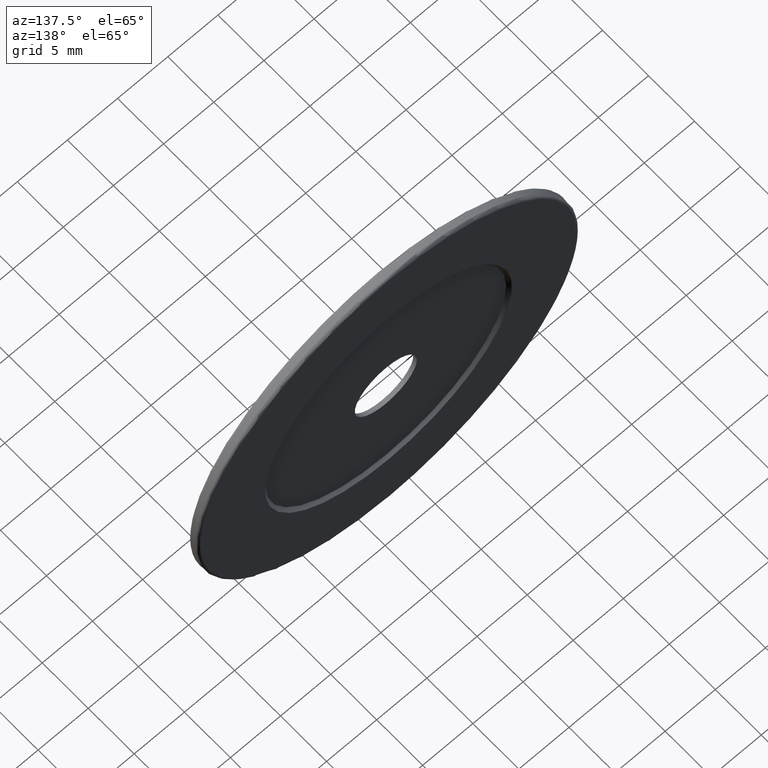
[diagram: clean part render]
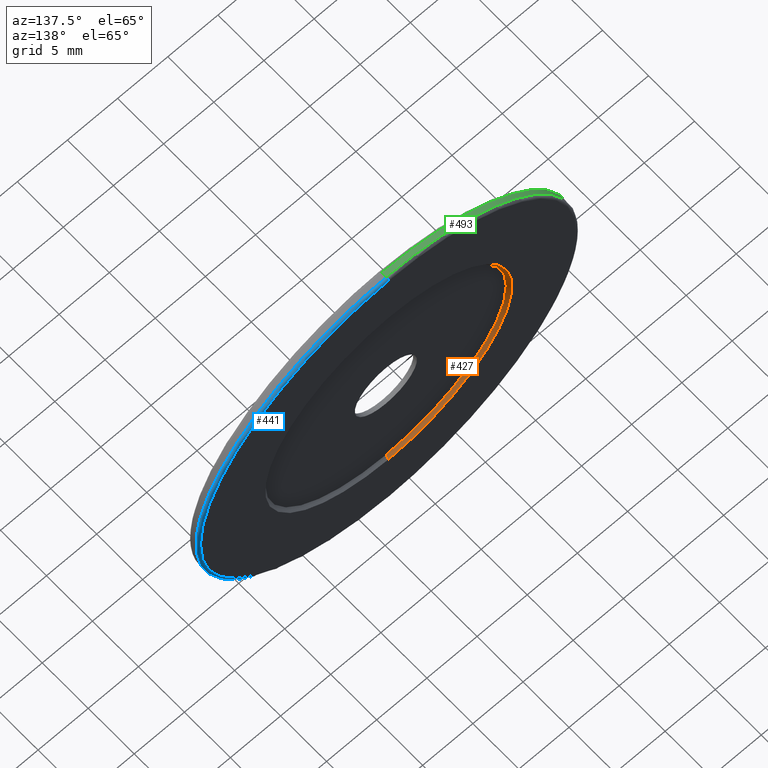
[diagram: same view with three faces highlighted in distinct colors, each labeled with its STEP entity id]
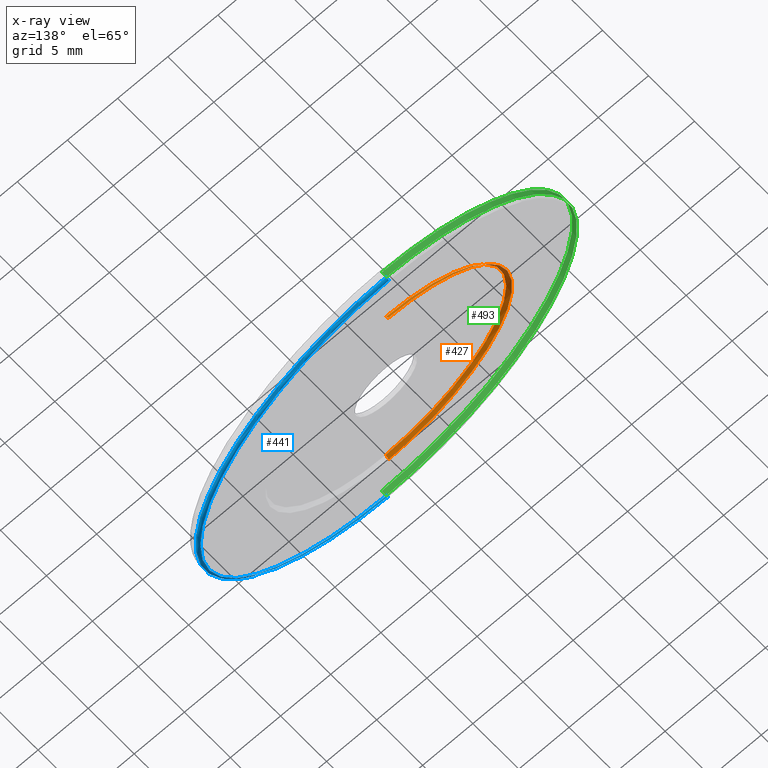
[diagram: x-ray of the same camera — body ghosted, the three highlighted faces saturated]
A machine part, auxiliary view with three faces highlighted in distinct colors.
The next image is the same camera in x-ray (body ghosted, the three faces saturated) — at least one of them is partly hidden behind the body in this view.
Their STEP definitions:

[orange] entity #427 — the highlighted conical surface has half-angle 45 deg.
#10 = DIRECTION ( 'NONE',  ( 0.000000000000000000, 0.000000000000000000, 1.000000000000000000 ) ) ;
#22 = CIRCLE ( 'NONE', #47, 12.00000000000000355 ) ;
#25 = DIRECTION ( 'NONE',  ( 8.659560562354833018E-17, 0.7071067811865556774, -0.7071067811865393571 ) ) ;
#47 = AXIS2_PLACEMENT_3D ( 'NONE', #52, #284, #449 ) ;
#52 = CARTESIAN_POINT ( 'NONE',  ( -7.546808913101048510, -2.693595127302727654, 38.00000000000000000 ) ) ;
#62 = VERTEX_POINT ( 'NONE', #322 ) ;
#76 = CARTESIAN_POINT ( 'NONE',  ( -7.546808913101048510, -2.693595127302736536, 50.00000000000000000 ) ) ;
#119 = VERTEX_POINT ( 'NONE', #442 ) ;
#131 = EDGE_CURVE ( 'NONE', #155, #119, #22, .T. ) ;
#148 = CONICAL_SURFACE ( 'NONE', #283, 12.00000000000000355, 0.7853981633974367327 ) ;
#155 = VERTEX_POINT ( 'NONE', #293 ) ;
#163 = EDGE_CURVE ( 'NONE', #155, #277, #381, .T. ) ;
#198 = EDGE_LOOP ( 'NONE', ( #402, #301, #269, #220 ) ) ;
#214 = CARTESIAN_POINT ( 'NONE',  ( -7.546808913101046734, -2.393595127302727832, 25.69999999999999218 ) ) ;
#220 = ORIENTED_EDGE ( 'NONE', *, *, #478, .F. ) ;
#226 = DIRECTION ( 'NONE',  ( 0.000000000000000000, 0.7071067811865556774, 0.7071067811865393571 ) ) ;
#239 = CARTESIAN_POINT ( 'NONE',  ( -7.546808913101048510, -2.393595127302727832, 38.00000000000000000 ) ) ;
#268 = FACE_OUTER_BOUND ( 'NONE', #198, .T. ) ;
#269 = ORIENTED_EDGE ( 'NONE', *, *, #480, .F. ) ;
#277 = VERTEX_POINT ( 'NONE', #214 ) ;
#283 = AXIS2_PLACEMENT_3D ( 'NONE', #476, #465, #389 ) ;
#284 = DIRECTION ( 'NONE',  ( 0.000000000000000000, 1.000000000000000000, 0.000000000000000000 ) ) ;
#293 = CARTESIAN_POINT ( 'NONE',  ( -7.546808913101046734, -2.693595127302727654, 25.99999999999999645 ) ) ;
#301 = ORIENTED_EDGE ( 'NONE', *, *, #163, .T. ) ;
#319 = VECTOR ( 'NONE', #25, 1000.000000000000000 ) ;
#322 = CARTESIAN_POINT ( 'NONE',  ( -7.546808913101048510, -2.393595127302727832, 50.30000000000000426 ) ) ;
#333 = CARTESIAN_POINT ( 'NONE',  ( -7.546808913101046734, -2.693595127302736536, 25.99999999999999645 ) ) ;
#354 = CIRCLE ( 'NONE', #398, 12.30000000000000604 ) ;
#381 = LINE ( 'NONE', #333, #319 ) ;
#389 = DIRECTION ( 'NONE',  ( 0.000000000000000000, 0.000000000000000000, 1.000000000000000000 ) ) ;
#398 = AXIS2_PLACEMENT_3D ( 'NONE', #239, #482, #10 ) ;
#402 = ORIENTED_EDGE ( 'NONE', *, *, #131, .F. ) ;
#427 = ADVANCED_FACE ( 'NONE', ( #268 ), #148, .F. ) ;
#432 = LINE ( 'NONE', #76, #481 ) ;
#442 = CARTESIAN_POINT ( 'NONE',  ( -7.546808913101048510, -2.693595127302727654, 50.00000000000000000 ) ) ;
#449 = DIRECTION ( 'NONE',  ( 0.000000000000000000, 0.000000000000000000, 1.000000000000000000 ) ) ;
#465 = DIRECTION ( 'NONE',  ( 0.000000000000000000, 1.000000000000000000, 0.000000000000000000 ) ) ;
#476 = CARTESIAN_POINT ( 'NONE',  ( -7.546808913101048510, -2.693595127302736536, 38.00000000000000000 ) ) ;
#478 = EDGE_CURVE ( 'NONE', #119, #62, #432, .T. ) ;
#480 = EDGE_CURVE ( 'NONE', #62, #277, #354, .T. ) ;
#481 = VECTOR ( 'NONE', #226, 1000.000000000000000 ) ;
#482 = DIRECTION ( 'NONE',  ( -0.000000000000000000, -1.000000000000000000, -0.000000000000000000 ) ) ;

[blue] entity #441 — the highlighted toroidal blend (fillet) surface has major radius 18.75 mm and minor (blend) radius 0.25 mm.
#20 = EDGE_CURVE ( 'NONE', #417, #117, #195, .T. ) ;
#30 = ORIENTED_EDGE ( 'NONE', *, *, #329, .F. ) ;
#34 = ORIENTED_EDGE ( 'NONE', *, *, #227, .F. ) ;
#35 = DIRECTION ( 'NONE',  ( -0.000000000000000000, -1.000000000000000000, -0.000000000000000000 ) ) ;
#41 = DIRECTION ( 'NONE',  ( 0.000000000000000000, 1.000000000000000000, 0.000000000000000000 ) ) ;
#66 = CIRCLE ( 'NONE', #266, 18.99999999999999645 ) ;
#78 = EDGE_LOOP ( 'NONE', ( #30, #232, #34, #378 ) ) ;
#87 = CARTESIAN_POINT ( 'NONE',  ( -7.546808913101048510, -2.643595127302727832, 56.74999999999999289 ) ) ;
#103 = CARTESIAN_POINT ( 'NONE',  ( -7.546808913101048510, -2.393595127302727832, 38.00000000000000000 ) ) ;
#106 = AXIS2_PLACEMENT_3D ( 'NONE', #118, #41, #259 ) ;
#108 = EDGE_CURVE ( 'NONE', #121, #308, #362, .T. ) ;
#111 = CARTESIAN_POINT ( 'NONE',  ( -7.546808913101045846, -2.643595127302727832, 56.99999999999999289 ) ) ;
#117 = VERTEX_POINT ( 'NONE', #240 ) ;
#118 = CARTESIAN_POINT ( 'NONE',  ( -7.546808913101048510, -2.643595127302727832, 38.00000000000000000 ) ) ;
#121 = VERTEX_POINT ( 'NONE', #206 ) ;
#125 = DIRECTION ( 'NONE',  ( 1.000000000000000000, -0.000000000000000000, 1.224646799147353207E-16 ) ) ;
#139 = DIRECTION ( 'NONE',  ( 0.000000000000000000, 0.000000000000000000, 1.000000000000000000 ) ) ;
#157 = CARTESIAN_POINT ( 'NONE',  ( -7.546808913101045846, -2.393595127302727832, 19.25000000000000000 ) ) ;
#162 = CARTESIAN_POINT ( 'NONE',  ( -7.546808913101045846, -2.643595127302727832, 19.25000000000000000 ) ) ;
#172 = AXIS2_PLACEMENT_3D ( 'NONE', #103, #492, #139 ) ;
#173 = DIRECTION ( 'NONE',  ( 0.000000000000000000, 0.000000000000000000, -1.000000000000000000 ) ) ;
#195 = CIRCLE ( 'NONE', #422, 0.2500000000000002220 ) ;
#206 = CARTESIAN_POINT ( 'NONE',  ( -7.546808913101048510, -2.643595127302727832, 19.00000000000000000 ) ) ;
#227 = EDGE_CURVE ( 'NONE', #117, #308, #396, .T. ) ;
#232 = ORIENTED_EDGE ( 'NONE', *, *, #108, .T. ) ;
#240 = CARTESIAN_POINT ( 'NONE',  ( -7.546808913101048510, -2.393595127302727832, 56.74999999999999289 ) ) ;
#259 = DIRECTION ( 'NONE',  ( 0.000000000000000000, 0.000000000000000000, 1.000000000000000000 ) ) ;
#266 = AXIS2_PLACEMENT_3D ( 'NONE', #348, #35, #437 ) ;
#279 = DIRECTION ( 'NONE',  ( 0.000000000000000000, 0.000000000000000000, 1.000000000000000000 ) ) ;
#280 = DIRECTION ( 'NONE',  ( -1.000000000000000000, 0.000000000000000000, 0.000000000000000000 ) ) ;
#281 = AXIS2_PLACEMENT_3D ( 'NONE', #162, #125, #173 ) ;
#308 = VERTEX_POINT ( 'NONE', #157 ) ;
#329 = EDGE_CURVE ( 'NONE', #121, #417, #66, .T. ) ;
#348 = CARTESIAN_POINT ( 'NONE',  ( -7.546808913101048510, -2.643595127302727832, 38.00000000000000000 ) ) ;
#362 = CIRCLE ( 'NONE', #281, 0.2500000000000002220 ) ;
#378 = ORIENTED_EDGE ( 'NONE', *, *, #20, .F. ) ;
#396 = CIRCLE ( 'NONE', #172, 18.74999999999999645 ) ;
#417 = VERTEX_POINT ( 'NONE', #111 ) ;
#422 = AXIS2_PLACEMENT_3D ( 'NONE', #87, #280, #279 ) ;
#425 = TOROIDAL_SURFACE ( 'NONE', #106, 18.75000000000000000, 0.2500000000000000000 ) ;
#435 = FACE_OUTER_BOUND ( 'NONE', #78, .T. ) ;
#437 = DIRECTION ( 'NONE',  ( 0.000000000000000000, 0.000000000000000000, 1.000000000000000000 ) ) ;
#441 = ADVANCED_FACE ( 'NONE', ( #435 ), #425, .T. ) ;
#492 = DIRECTION ( 'NONE',  ( 0.000000000000000000, 1.000000000000000000, 0.000000000000000000 ) ) ;

[green] entity #493 — the highlighted cylindrical surface (partial cylindrical patch) has radius 19 mm, axis along (-0, -1, -0).
#16 = CARTESIAN_POINT ( 'NONE',  ( -7.546808913101044958, -3.143595127302728276, 19.00000000000000000 ) ) ;
#36 = EDGE_LOOP ( 'NONE', ( #271, #349, #466, #249 ) ) ;
#42 = AXIS2_PLACEMENT_3D ( 'NONE', #197, #273, #511 ) ;
#44 = VERTEX_POINT ( 'NONE', #286 ) ;
#61 = DIRECTION ( 'NONE',  ( -0.000000000000000000, -1.000000000000000000, -0.000000000000000000 ) ) ;
#73 = LINE ( 'NONE', #188, #267 ) ;
#83 = CYLINDRICAL_SURFACE ( 'NONE', #464, 19.00000000000000000 ) ;
#86 = DIRECTION ( 'NONE',  ( 0.000000000000000000, 0.000000000000000000, -1.000000000000000000 ) ) ;
#111 = CARTESIAN_POINT ( 'NONE',  ( -7.546808913101045846, -2.643595127302727832, 56.99999999999999289 ) ) ;
#121 = VERTEX_POINT ( 'NONE', #206 ) ;
#152 = DIRECTION ( 'NONE',  ( -0.000000000000000000, -1.000000000000000000, -0.000000000000000000 ) ) ;
#159 = DIRECTION ( 'NONE',  ( -0.000000000000000000, -1.000000000000000000, -0.000000000000000000 ) ) ;
#174 = AXIS2_PLACEMENT_3D ( 'NONE', #419, #61, #215 ) ;
#188 = CARTESIAN_POINT ( 'NONE',  ( -7.546808913101045846, -2.393595127302727832, 56.99999999999999289 ) ) ;
#197 = CARTESIAN_POINT ( 'NONE',  ( -7.546808913101048510, -3.143595127302728276, 38.00000000000000000 ) ) ;
#206 = CARTESIAN_POINT ( 'NONE',  ( -7.546808913101048510, -2.643595127302727832, 19.00000000000000000 ) ) ;
#209 = DIRECTION ( 'NONE',  ( -0.000000000000000000, -1.000000000000000000, -0.000000000000000000 ) ) ;
#215 = DIRECTION ( 'NONE',  ( 0.000000000000000000, 0.000000000000000000, 1.000000000000000000 ) ) ;
#243 = CIRCLE ( 'NONE', #42, 18.99999999999999645 ) ;
#249 = ORIENTED_EDGE ( 'NONE', *, *, #311, .T. ) ;
#256 = VERTEX_POINT ( 'NONE', #16 ) ;
#267 = VECTOR ( 'NONE', #152, 1000.000000000000000 ) ;
#271 = ORIENTED_EDGE ( 'NONE', *, *, #469, .F. ) ;
#273 = DIRECTION ( 'NONE',  ( 0.000000000000000000, 1.000000000000000000, 0.000000000000000000 ) ) ;
#285 = EDGE_CURVE ( 'NONE', #417, #121, #336, .T. ) ;
#286 = CARTESIAN_POINT ( 'NONE',  ( -7.546808913101048510, -3.143595127302728276, 56.99999999999999289 ) ) ;
#287 = EDGE_CURVE ( 'NONE', #121, #256, #377, .T. ) ;
#311 = EDGE_CURVE ( 'NONE', #256, #44, #243, .T. ) ;
#321 = CARTESIAN_POINT ( 'NONE',  ( -7.546808913101048510, -2.393595127302727832, 38.00000000000000000 ) ) ;
#336 = CIRCLE ( 'NONE', #174, 18.99999999999999645 ) ;
#349 = ORIENTED_EDGE ( 'NONE', *, *, #285, .T. ) ;
#351 = CARTESIAN_POINT ( 'NONE',  ( -7.546808913101048510, -2.393595127302727832, 19.00000000000000000 ) ) ;
#369 = FACE_OUTER_BOUND ( 'NONE', #36, .T. ) ;
#377 = LINE ( 'NONE', #351, #454 ) ;
#417 = VERTEX_POINT ( 'NONE', #111 ) ;
#419 = CARTESIAN_POINT ( 'NONE',  ( -7.546808913101048510, -2.643595127302727832, 38.00000000000000000 ) ) ;
#454 = VECTOR ( 'NONE', #159, 1000.000000000000000 ) ;
#464 = AXIS2_PLACEMENT_3D ( 'NONE', #321, #209, #86 ) ;
#466 = ORIENTED_EDGE ( 'NONE', *, *, #287, .T. ) ;
#469 = EDGE_CURVE ( 'NONE', #417, #44, #73, .T. ) ;
#493 = ADVANCED_FACE ( 'NONE', ( #369 ), #83, .T. ) ;
#511 = DIRECTION ( 'NONE',  ( 0.000000000000000000, 0.000000000000000000, 1.000000000000000000 ) ) ;